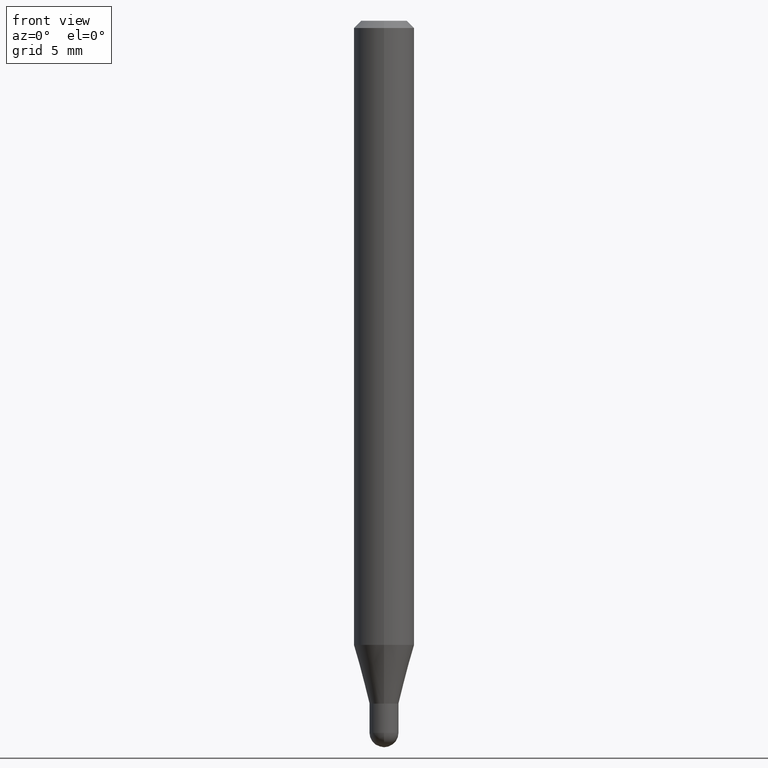
[diagram: clean part render]
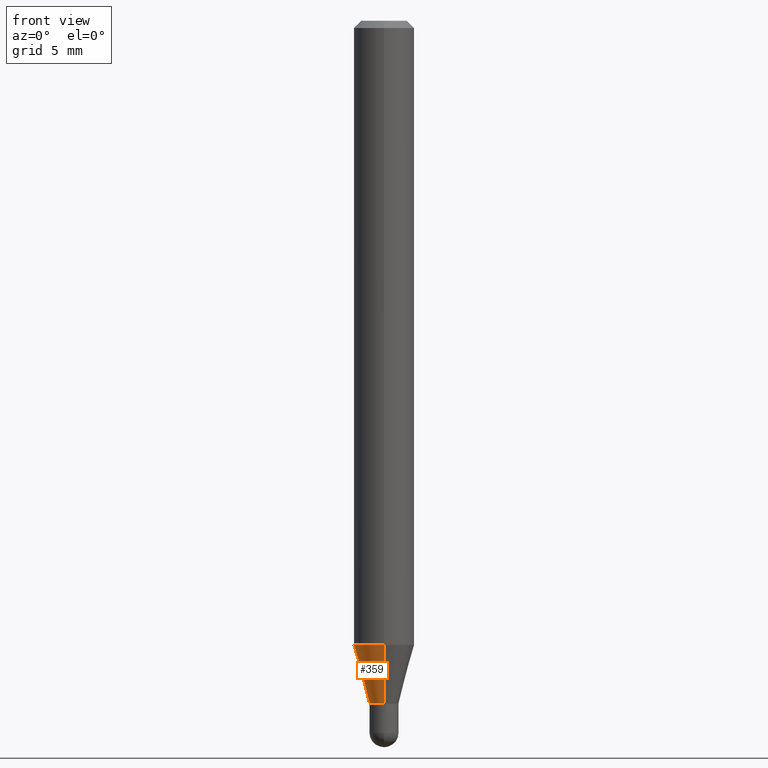
[diagram: same view with one face highlighted and labeled with its STEP entity id]
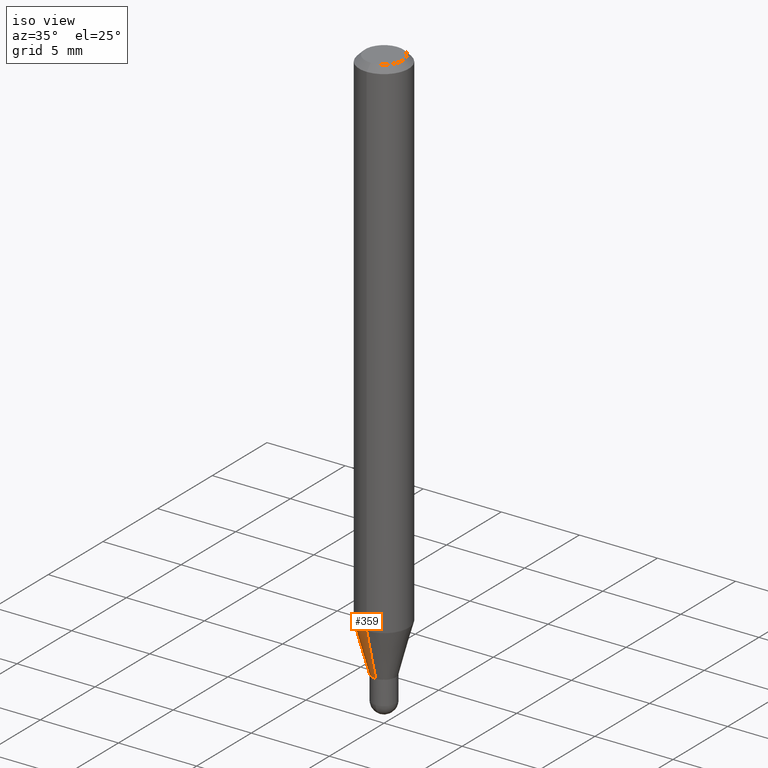
[diagram: same view with one face highlighted and labeled with its STEP entity id]
A machine part, front view. The second image highlights one B-rep face of the part: STEP entity #359.
A second angle (iso view) of the same face is appended — the face is thin or edge-on in the first view.
In plain terms, the highlighted conical surface has half-angle 15 deg.
Its self-contained STEP definition (entity closure, byte-faithful):
#3 = DIRECTION ( 'NONE',  ( -2.445461628991591881E-29, 3.491491616992802242E-15, 1.000000000000000000 ) ) ;
#6 = VECTOR ( 'NONE', #431, 39.37007874015747433 ) ;
#11 = VERTEX_POINT ( 'NONE', #384 ) ;
#20 = ORIENTED_EDGE ( 'NONE', *, *, #226, .F. ) ;
#37 = LINE ( 'NONE', #233, #456 ) ;
#68 = VERTEX_POINT ( 'NONE', #82 ) ;
#82 = CARTESIAN_POINT ( 'NONE',  ( -2.094888803305548889E-16, -0.03000000000000512326, -1.410000000000000586 ) ) ;
#92 = EDGE_CURVE ( 'NONE', #68, #212, #37, .T. ) ;
#102 = CARTESIAN_POINT ( 'NONE',  ( 3.448100896878145452E-29, -4.923003179959853236E-15, -1.410000000000000586 ) ) ;
#127 = CARTESIAN_POINT ( 'NONE',  ( -4.364351673553602629E-16, -0.06250000000000452416, -1.288708348754016519 ) ) ;
#170 = AXIS2_PLACEMENT_3D ( 'NONE', #493, #173, #175 ) ;
#173 = DIRECTION ( 'NONE',  ( -2.445461628991591881E-29, 3.491491616992802242E-15, 1.000000000000000000 ) ) ;
#175 = DIRECTION ( 'NONE',  ( -6.982962677686265922E-15, -1.000000000000000000, 4.370956789862821150E-15 ) ) ;
#188 = ORIENTED_EDGE ( 'NONE', *, *, #92, .T. ) ;
#212 = VERTEX_POINT ( 'NONE', #127 ) ;
#223 = DIRECTION ( 'NONE',  ( -6.982962677686265922E-15, -1.000000000000000000, 0.000000000000000000 ) ) ;
#226 = EDGE_CURVE ( 'NONE', #244, #212, #433, .T. ) ;
#229 = CONICAL_SURFACE ( 'NONE', #261, 0.03000000000000020012, 0.2617993877991577345 ) ;
#233 = CARTESIAN_POINT ( 'NONE',  ( -2.094888803305548889E-16, -0.03000000000000512326, -1.410000000000000586 ) ) ;
#234 = LINE ( 'NONE', #466, #6 ) ;
#244 = VERTEX_POINT ( 'NONE', #374 ) ;
#249 = DIRECTION ( 'NONE',  ( -2.445461628991591881E-29, 3.491491616992802242E-15, 1.000000000000000000 ) ) ;
#261 = AXIS2_PLACEMENT_3D ( 'NONE', #102, #249, #448 ) ;
#262 = CARTESIAN_POINT ( 'NONE',  ( 3.448100896878145452E-29, -4.923003179959853236E-15, -1.410000000000000586 ) ) ;
#271 = ORIENTED_EDGE ( 'NONE', *, *, #469, .T. ) ;
#282 = EDGE_LOOP ( 'NONE', ( #395, #271, #188, #20 ) ) ;
#359 = ADVANCED_FACE ( 'NONE', ( #501 ), #229, .T. ) ;
#374 = CARTESIAN_POINT ( 'NONE',  ( 4.440892098500938748E-16, 0.06249999999999547584, -1.288708348754017186 ) ) ;
#382 = AXIS2_PLACEMENT_3D ( 'NONE', #262, #3, #223 ) ;
#384 = CARTESIAN_POINT ( 'NONE',  ( 3.286260152890800558E-16, 0.02999999999999528044, -1.410000000000000586 ) ) ;
#395 = ORIENTED_EDGE ( 'NONE', *, *, #452, .F. ) ;
#426 = CIRCLE ( 'NONE', #382, 0.03000000000000020012 ) ;
#431 = DIRECTION ( 'NONE',  ( 1.839019923739651986E-15, 0.2588190451025322303, 0.9659258262890653146 ) ) ;
#433 = CIRCLE ( 'NONE', #170, 0.06250000000000000000 ) ;
#448 = DIRECTION ( 'NONE',  ( -6.982962677686265922E-15, -1.000000000000000000, 0.000000000000000000 ) ) ;
#452 = EDGE_CURVE ( 'NONE', #11, #244, #234, .T. ) ;
#456 = VECTOR ( 'NONE', #484, 39.37007874015748854 ) ;
#466 = CARTESIAN_POINT ( 'NONE',  ( 2.131628207280659410E-16, 0.02999999999999528044, -1.410000000000000586 ) ) ;
#469 = EDGE_CURVE ( 'NONE', #11, #68, #426, .T. ) ;
#484 = DIRECTION ( 'NONE',  ( -1.807323732225380626E-15, -0.2588190451025254024, 0.9659258262890669799 ) ) ;
#493 = CARTESIAN_POINT ( 'NONE',  ( 3.151486817839062472E-29, -4.499514396423286134E-15, -1.288708348754016741 ) ) ;
#501 = FACE_OUTER_BOUND ( 'NONE', #282, .T. ) ;